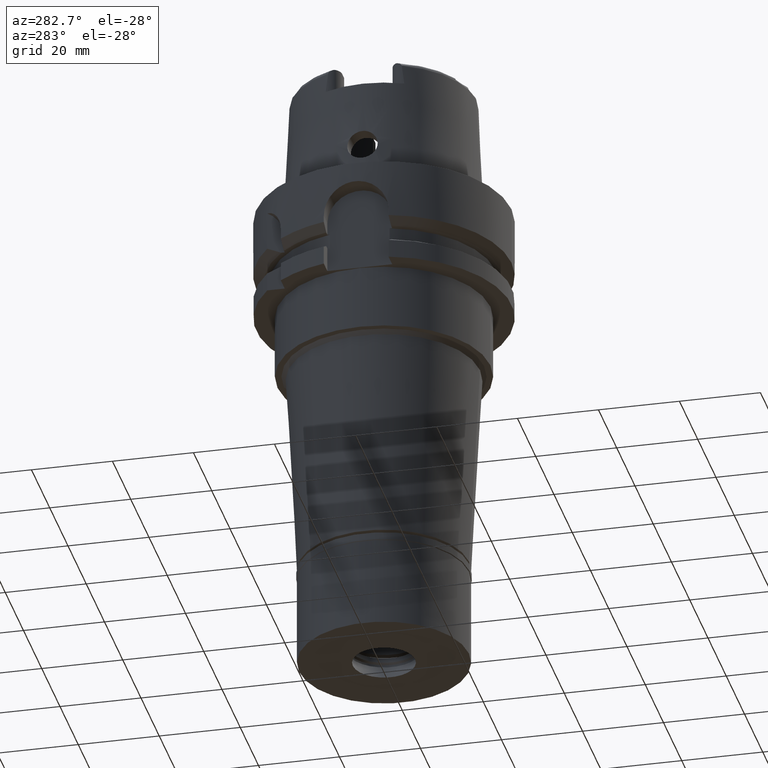
[diagram: clean part render]
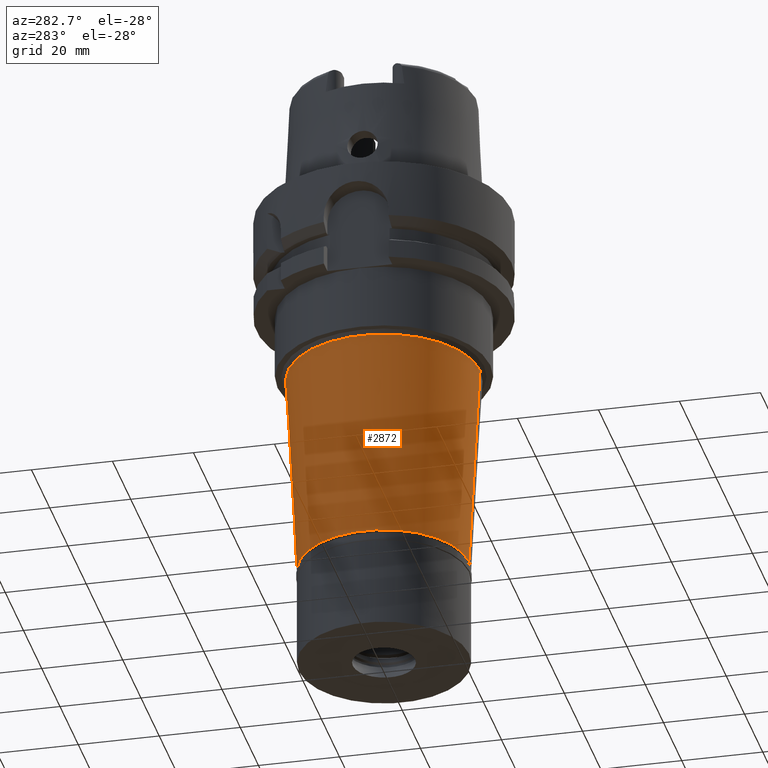
[diagram: same view with one face highlighted and labeled with its STEP entity id]
A machine part, auxiliary view. The second image highlights one B-rep face of the part: STEP entity #2872.
In plain terms, the highlighted conical surface has half-angle 3 deg.
Its self-contained STEP definition (entity closure, byte-faithful):
#81 = DIRECTION ( 'NONE',  ( 0.0000000000000000000, 1.000000000000000000, 0.0000000000000000000 ) ) ;
#609 = EDGE_CURVE ( 'NONE', #2939, #3333, #3481, .T. ) ;
#831 = DIRECTION ( 'NONE',  ( 0.0000000000000000000, 0.0000000000000000000, -1.000000000000000000 ) ) ;
#839 = CARTESIAN_POINT ( 'NONE',  ( 0.0000000000000000000, -23.71996374479000025, -43.00000000000000000 ) ) ;
#974 = FACE_OUTER_BOUND ( 'NONE', #4461, .T. ) ;
#1000 = DIRECTION ( 'NONE',  ( 0.0000000000000000000, 0.05233595624295861448, -0.9986295347545731671 ) ) ;
#1057 = EDGE_CURVE ( 'NONE', #2609, #4724, #1441, .T. ) ;
#1305 = CARTESIAN_POINT ( 'NONE',  ( 0.0000000000000000000, 0.0000000000000000000, -43.00000000000000000 ) ) ;
#1320 = ORIENTED_EDGE ( 'NONE', *, *, #2369, .T. ) ;
#1367 = DIRECTION ( 'NONE',  ( 0.0000000000000000000, -0.05233595624295861448, -0.9986295347545731671 ) ) ;
#1385 = CARTESIAN_POINT ( 'NONE',  ( 0.0000000000000000000, -23.71996374479000025, -43.00000000000000000 ) ) ;
#1441 = LINE ( 'NONE', #1385, #4498 ) ;
#1533 = AXIS2_PLACEMENT_3D ( 'NONE', #1305, #831, #2452 ) ;
#1613 = DIRECTION ( 'NONE',  ( 0.0000000000000000000, 1.000000000000000000, 0.0000000000000000000 ) ) ;
#1999 = VECTOR ( 'NONE', #1367, 1000.000000000000000 ) ;
#2369 = EDGE_CURVE ( 'NONE', #3333, #4724, #4260, .T. ) ;
#2452 = DIRECTION ( 'NONE',  ( 0.0000000000000000000, -1.000000000000000000, 0.0000000000000000000 ) ) ;
#2456 = ORIENTED_EDGE ( 'NONE', *, *, #2968, .T. ) ;
#2489 = CIRCLE ( 'NONE', #1533, 23.71996374479000025 ) ;
#2579 = AXIS2_PLACEMENT_3D ( 'NONE', #2653, #3503, #81 ) ;
#2602 = CARTESIAN_POINT ( 'NONE',  ( 0.0000000000000000000, 23.71996374479000025, -43.00000000000000000 ) ) ;
#2609 = VERTEX_POINT ( 'NONE', #839 ) ;
#2653 = CARTESIAN_POINT ( 'NONE',  ( 0.0000000000000000000, 0.0000000000000000000, -68.95000000000000284 ) ) ;
#2661 = CARTESIAN_POINT ( 'NONE',  ( 0.0000000000000000000, 21.00000000000000000, -94.89999999999999147 ) ) ;
#2800 = ORIENTED_EDGE ( 'NONE', *, *, #1057, .F. ) ;
#2872 = ADVANCED_FACE ( 'NONE', ( #974 ), #4957, .T. ) ;
#2939 = VERTEX_POINT ( 'NONE', #3276 ) ;
#2968 = EDGE_CURVE ( 'NONE', #2609, #2939, #2489, .T. ) ;
#3230 = DIRECTION ( 'NONE',  ( 0.0000000000000000000, 0.0000000000000000000, 1.000000000000000000 ) ) ;
#3276 = CARTESIAN_POINT ( 'NONE',  ( 0.0000000000000000000, 23.71996374479000025, -43.00000000000000000 ) ) ;
#3333 = VERTEX_POINT ( 'NONE', #2661 ) ;
#3409 = CARTESIAN_POINT ( 'NONE',  ( 0.0000000000000000000, -21.00000000000000000, -94.89999999999999147 ) ) ;
#3481 = LINE ( 'NONE', #2602, #1999 ) ;
#3503 = DIRECTION ( 'NONE',  ( 0.0000000000000000000, 0.0000000000000000000, 1.000000000000000000 ) ) ;
#4260 = CIRCLE ( 'NONE', #4442, 21.00000000000000000 ) ;
#4442 = AXIS2_PLACEMENT_3D ( 'NONE', #5389, #3230, #1613 ) ;
#4461 = EDGE_LOOP ( 'NONE', ( #1320, #2800, #2456, #5023 ) ) ;
#4498 = VECTOR ( 'NONE', #1000, 1000.000000000000000 ) ;
#4724 = VERTEX_POINT ( 'NONE', #3409 ) ;
#4957 = CONICAL_SURFACE ( 'NONE', #2579, 22.35998187239000146, 0.05235987755982005748 ) ;
#5023 = ORIENTED_EDGE ( 'NONE', *, *, #609, .T. ) ;
#5389 = CARTESIAN_POINT ( 'NONE',  ( 0.0000000000000000000, 0.0000000000000000000, -94.89999999999999147 ) ) ;